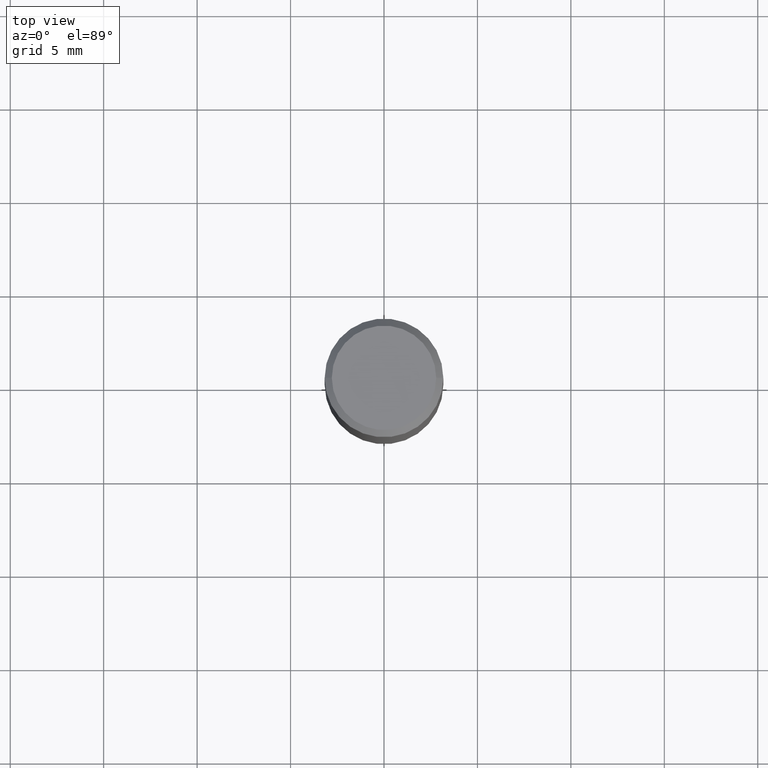
[diagram: clean part render]
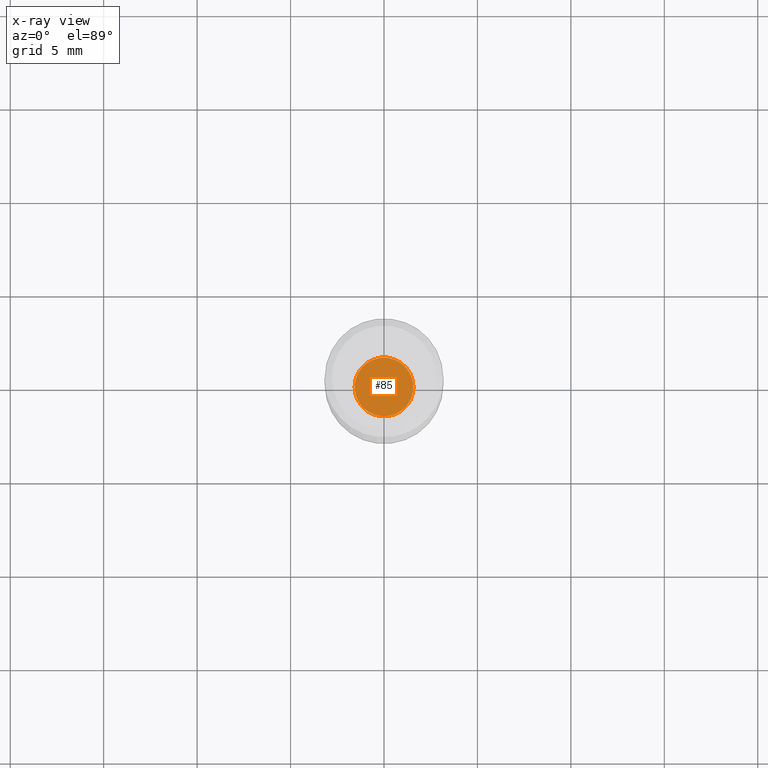
[diagram: x-ray — body ghosted, one internal face saturated and labeled with its STEP entity id]
A machine part, top view, then the same camera in x-ray: the body is ghosted and one INTERNAL B-rep face — a face not visible from any outside direction — is saturated and labeled: STEP entity #85.
In plain terms, the highlighted planar face has unit normal (-0, 0, 1).
Its self-contained STEP definition (entity closure, byte-faithful):
#13 = AXIS2_PLACEMENT_3D ( 'NONE', #423, #394, #319 ) ;
#42 = AXIS2_PLACEMENT_3D ( 'NONE', #234, #172, #63 ) ;
#63 = DIRECTION ( 'NONE',  ( 1.000000000000000000, -6.982962677686262766E-15, 0.000000000000000000 ) ) ;
#70 = DIRECTION ( 'NONE',  ( -2.438088387897960049E-29, 3.491481338843145188E-15, 1.000000000000000000 ) ) ;
#85 = ADVANCED_FACE ( 'NONE', ( #353 ), #459, .F. ) ;
#126 = EDGE_CURVE ( 'NONE', #379, #293, #453, .T. ) ;
#172 = DIRECTION ( 'NONE',  ( -2.445468806185136597E-29, 3.491481338843145583E-15, 1.000000000000000000 ) ) ;
#179 = CARTESIAN_POINT ( 'NONE',  ( -0.06199999999999999956, -3.484730782853164728E-15, -1.125000000000000000 ) ) ;
#211 = DIRECTION ( 'NONE',  ( 1.000000000000000000, -6.982962677686265922E-15, 4.876176775795935793E-29 ) ) ;
#219 = ORIENTED_EDGE ( 'NONE', *, *, #389, .F. ) ;
#234 = CARTESIAN_POINT ( 'NONE',  ( 2.751152406958278671E-29, -3.927916506198539224E-15, -1.125000000000000000 ) ) ;
#242 = CARTESIAN_POINT ( 'NONE',  ( 0.06199999999999999956, -4.360860192215087098E-15, -1.125000000000000000 ) ) ;
#260 = EDGE_LOOP ( 'NONE', ( #366, #219 ) ) ;
#286 = CIRCLE ( 'NONE', #13, 0.06199999999999999956 ) ;
#293 = VERTEX_POINT ( 'NONE', #179 ) ;
#319 = DIRECTION ( 'NONE',  ( 1.000000000000000000, -6.982962677686262766E-15, 0.000000000000000000 ) ) ;
#353 = FACE_OUTER_BOUND ( 'NONE', #260, .T. ) ;
#354 = AXIS2_PLACEMENT_3D ( 'NONE', #388, #70, #211 ) ;
#366 = ORIENTED_EDGE ( 'NONE', *, *, #126, .F. ) ;
#379 = VERTEX_POINT ( 'NONE', #242 ) ;
#388 = CARTESIAN_POINT ( 'NONE',  ( 2.751152406958279232E-29, -3.927916506198539224E-15, -1.125000000000000222 ) ) ;
#389 = EDGE_CURVE ( 'NONE', #293, #379, #286, .T. ) ;
#394 = DIRECTION ( 'NONE',  ( -2.445468806185136597E-29, 3.491481338843145583E-15, 1.000000000000000000 ) ) ;
#423 = CARTESIAN_POINT ( 'NONE',  ( 2.751152406958278671E-29, -3.927916506198539224E-15, -1.125000000000000000 ) ) ;
#453 = CIRCLE ( 'NONE', #42, 0.06199999999999999956 ) ;
#459 = PLANE ( 'NONE',  #354 ) ;